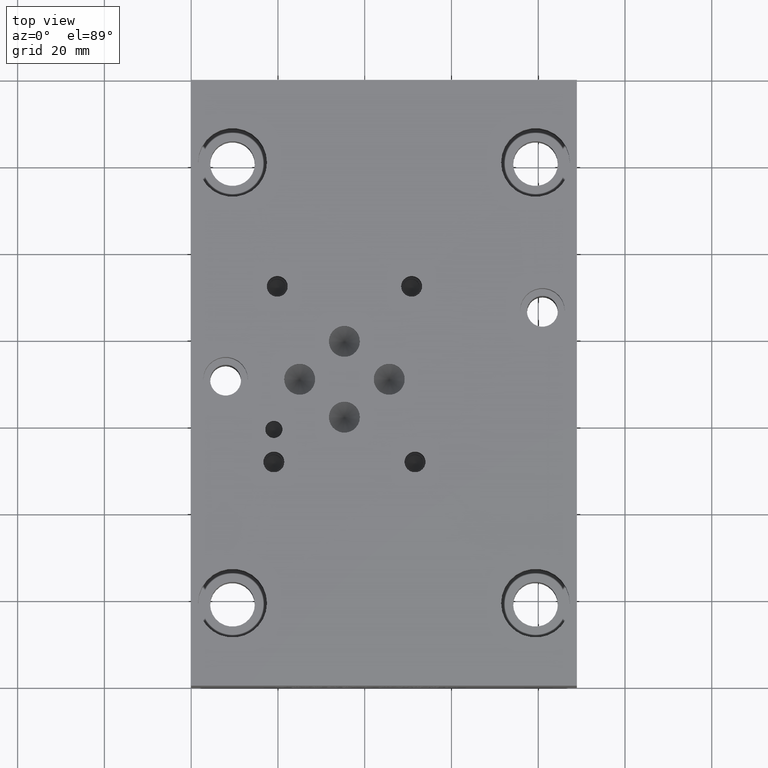
[diagram: clean part render]
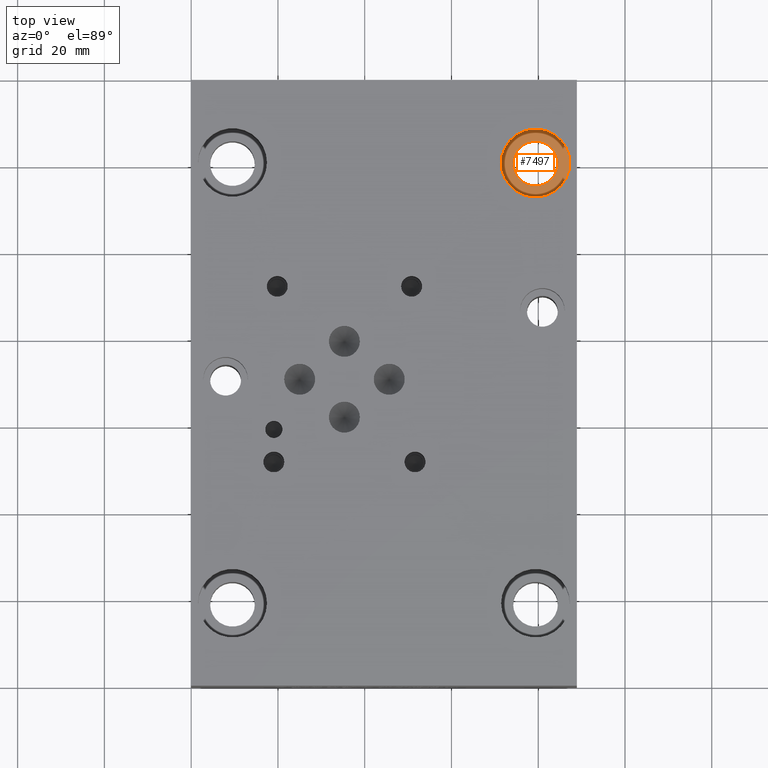
[diagram: same view with one face highlighted and labeled with its STEP entity id]
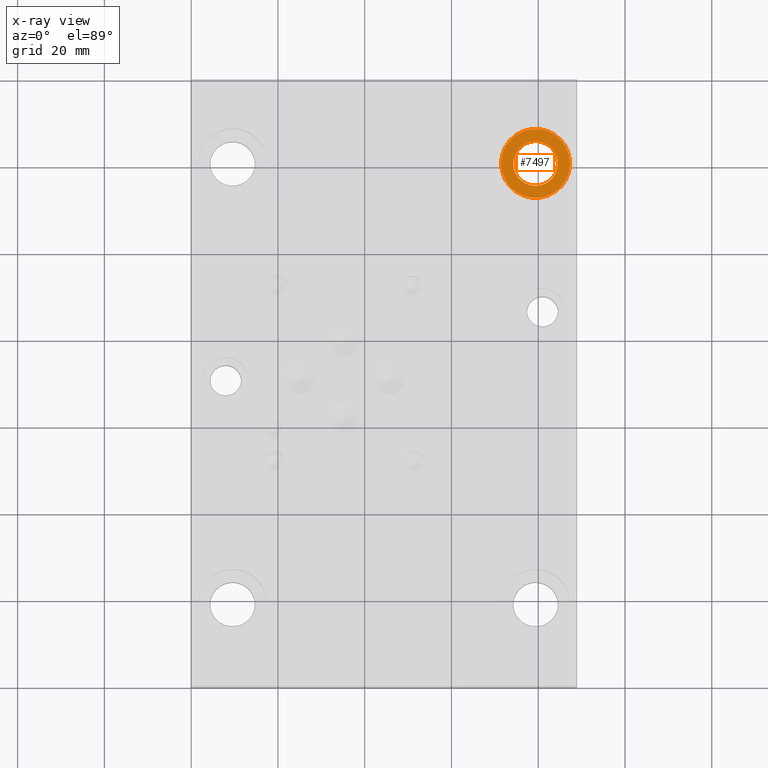
[diagram: x-ray of the same camera — body ghosted, the highlighted face saturated]
A machine part, top view. The second image highlights one B-rep face of the part: STEP entity #7497.
The next image is the same camera in x-ray: the body ghosted, the highlighted face saturated — about 0% of this face is hidden behind the body in this view.
In plain terms, the highlighted planar face has unit normal (0, 0, 1).
Its self-contained STEP definition (entity closure, byte-faithful):
#76=CIRCLE('',#7874,7.9375);
#77=CIRCLE('',#7875,5.1562);
#446=FACE_BOUND('',#1270,.T.);
#823=FACE_OUTER_BOUND('',#1269,.T.);
#1269=EDGE_LOOP('',(#6413));
#1270=EDGE_LOOP('',(#6414));
#3498=VERTEX_POINT('',#12531);
#3499=VERTEX_POINT('',#12533);
#4487=EDGE_CURVE('',#3498,#3498,#76,.T.);
#4488=EDGE_CURVE('',#3499,#3499,#77,.T.);
#6413=ORIENTED_EDGE('',*,*,#4487,.T.);
#6414=ORIENTED_EDGE('',*,*,#4488,.F.);
#6823=PLANE('',#7873);
#7497=ADVANCED_FACE('',(#823,#446),#6823,.T.);
#7873=AXIS2_PLACEMENT_3D('',#12530,#9322,#9323);
#7874=AXIS2_PLACEMENT_3D('',#12532,#9324,#9325);
#7875=AXIS2_PLACEMENT_3D('',#12534,#9326,#9327);
#9322=DIRECTION('center_axis',(0.,0.,1.));
#9323=DIRECTION('ref_axis',(1.,0.,0.));
#9324=DIRECTION('center_axis',(0.,0.,1.));
#9325=DIRECTION('ref_axis',(1.,0.,0.));
#9326=DIRECTION('center_axis',(0.,0.,1.));
#9327=DIRECTION('ref_axis',(1.,0.,0.));
#12530=CARTESIAN_POINT('Origin',(79.375,120.65,17.4498));
#12531=CARTESIAN_POINT('',(71.4375,120.65,17.4498));
#12532=CARTESIAN_POINT('Origin',(79.375,120.65,17.4498));
#12533=CARTESIAN_POINT('',(74.2188,120.65,17.4498));
#12534=CARTESIAN_POINT('Origin',(79.375,120.65,17.4498));